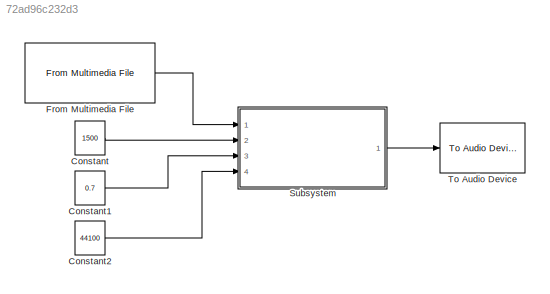
MODEL slx_72ad96c232d3
KIND model
BLOCK [Constant] Constant
  Value = 1500
  VectorParams1D = off
BLOCK [Constant] Constant1
  Value = 0.7
  VectorParams1D = off
BLOCK [Constant] Constant2
  Value = 44100
  VectorParams1D = off
BLOCK [Reference] From Multimedia File  REF=dspvision/From Multimedia File
  Ports = [0, 1]
  SourceBlock = dspvision/From Multimedia File
  SourceType = From Multimedia File
  audioDataType = double
  audioFrameSize = 1024
  colorVideoFormat = Separate color signals
  computeAudioFrameSize = off
  dataOrg = Column-major
  fourcc = RGB
  inheritSampleTime = on
  inputFilename = <userpath>\Desktop\Embedded system\MATLAB_DSP\ringmod\deltaclick.wav
  isIntensityVideo = off
  loop = on
  noAudioOutput = off
  numPlays = inf
  outSamplingMode = Frame based
  outputEOF = off
  outputStreams = Audio only
  userDefinedSampleTime = 1/30
  videoDataType = single
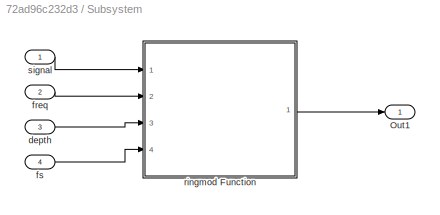
BLOCK [SubSystem] Subsystem
  Ports = [4, 1]
  RequestExecContextInheritance = off
BLOCK [Outport] Subsystem/Out1
  IconDisplay = Port number
BLOCK [Inport] Subsystem/depth
  IconDisplay = Port number
  Port = 3
BLOCK [Inport] Subsystem/freq
  IconDisplay = Port number
  Port = 2
BLOCK [Inport] Subsystem/fs
  IconDisplay = Port number
  Port = 4
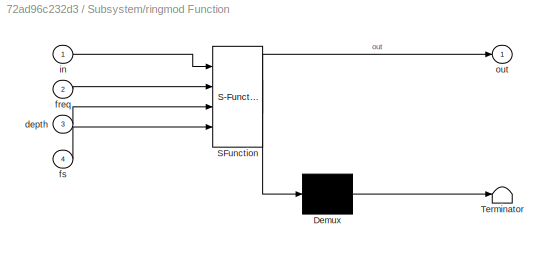
BLOCK [SubSystem] Subsystem/ringmod Function
  ErrorFcn = Stateflow.Translate.translate
  PermitHierarchicalResolution = ExplicitOnly
  Ports = [4, 1]
  RequestExecContextInheritance = off
  SFBlockType = MATLAB Function
  TreatAsAtomicUnit = on
BLOCK [Demux] Subsystem/ringmod Function/ Demux 
  Outputs = 1
  Ports = [1, 1]
BLOCK [S-Function] Subsystem/ringmod Function/ SFunction 
  EnableBusSupport = on
  FunctionName = sf_sfun
  PortCounts = [4 2]
  Ports = [4, 2]
  Tag = Stateflow S-Function ringmod 2
BLOCK [Terminator] Subsystem/ringmod Function/ Terminator 
BLOCK [Inport] Subsystem/ringmod Function/depth
  IconDisplay = Port number
  Port = 3
BLOCK [Inport] Subsystem/ringmod Function/freq
  IconDisplay = Port number
  Port = 2
BLOCK [Inport] Subsystem/ringmod Function/fs
  IconDisplay = Port number
  Port = 4
BLOCK [Inport] Subsystem/ringmod Function/in
  IconDisplay = Port number
BLOCK [Outport] Subsystem/ringmod Function/out
  IconDisplay = Port number
BLOCK [Inport] Subsystem/signal
  IconDisplay = Port number
BLOCK [Reference] To Audio Device  REF=dspsnks4/To Audio
Device
  Ports = [1]
  SourceBlock = dspsnks4/To Audio\nDevice
  SourceType = To Audio Device
  autoBufferSize = on
  bufferSize = 4096
  defaultOutputChannelMapping = on
  deviceDatatype = Determine from input data type
  deviceName = Default
  inheritSampleRate = on
  outputChannelMapping = 1:2
  outputNumUnderrunSamples = off
  queueDuration = 1.0
  sampleRate = 44100
LINE Constant1:1 -> Subsystem:3
LINE Constant2:1 -> Subsystem:4
LINE Constant:1 -> Subsystem:2
LINE From Multimedia File:1 -> Subsystem:1
LINE Subsystem/depth:1 -> Subsystem/ringmod Function:3
LINE Subsystem/freq:1 -> Subsystem/ringmod Function:2
LINE Subsystem/fs:1 -> Subsystem/ringmod Function:4
LINE Subsystem/ringmod Function:1 -> Subsystem/Out1:1
LINE Subsystem/signal:1 -> Subsystem/ringmod Function:1
LINE Subsystem:1 -> To Audio Device:1
CHART Subsystem/ringmod Function states=1 transitions=1
  STATE_LABEL 'eML_blk_kernel()'
  STATE_LABEL "SCRIPT:\nfunction out   = ringmod( in, freq, depth, fs )\n%RINGMOD ring modulates input signal at specified frequency and depth\n% in is input signal\n% modfreq is frequency of the ring mod\n% depth ranges 0 (no ringmod added) to 1 (equal amplitude added)\n% fs is sampling freq of input signal\n\nn = (1:length(in))';\nwave = depth*sin(2*pi*freq/fs .*n);\nmodulated = wave.*in;\n\nout = in + modulated;\n\nend"
